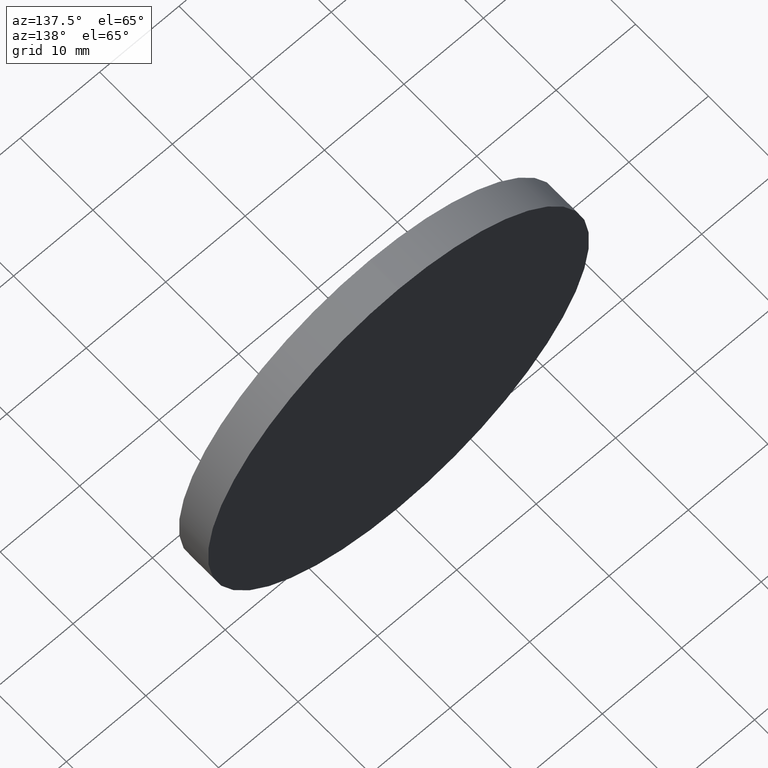
[diagram: clean part render]
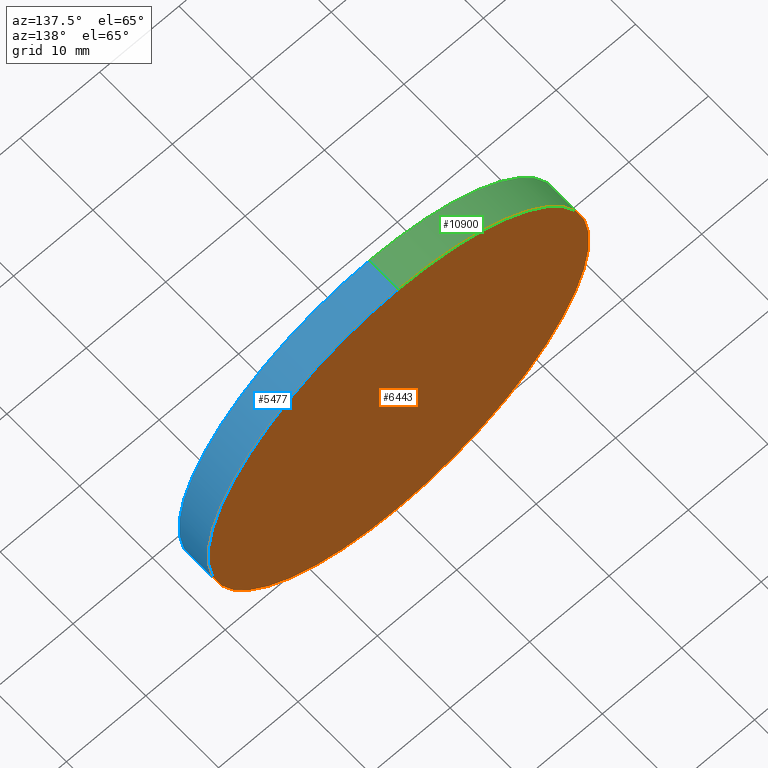
[diagram: same view with three faces highlighted in distinct colors, each labeled with its STEP entity id]
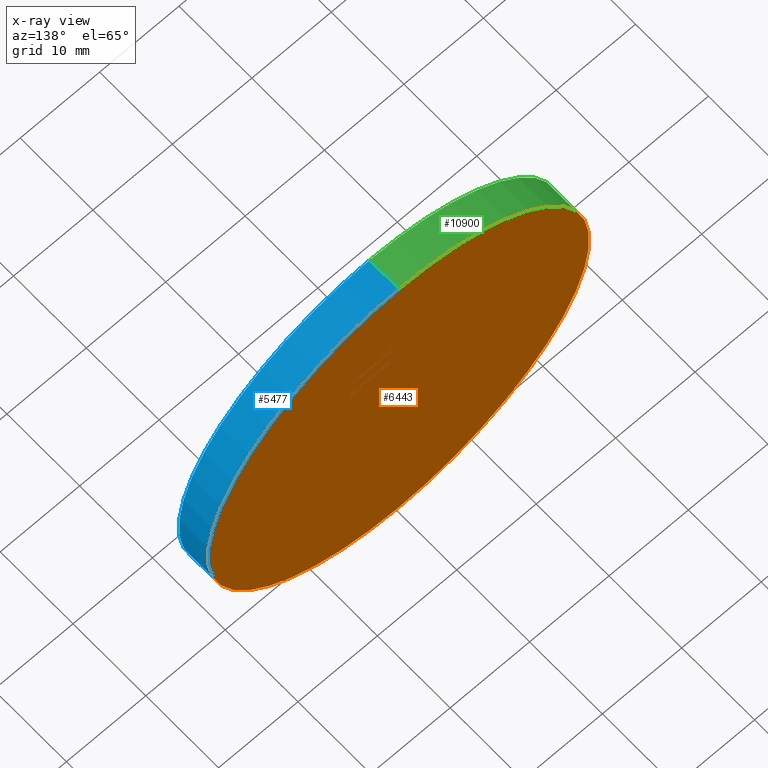
[diagram: x-ray of the same camera — body ghosted, the three highlighted faces saturated]
A machine part, auxiliary view with three faces highlighted in distinct colors.
The next image is the same camera in x-ray (body ghosted, the three faces saturated) — at least one of them is partly hidden behind the body in this view.
Their STEP definitions:

[orange] entity #6443 — the highlighted planar face has unit normal (0, 1, 0).
#729 = DIRECTION ( 'NONE',  ( 0.000000000000000000, 1.000000000000000000, 0.000000000000000000 ) ) ;
#2249 = VERTEX_POINT ( 'NONE', #11941 ) ;
#2889 = AXIS2_PLACEMENT_3D ( 'NONE', #12358, #11197, #7080 ) ;
#2966 = ORIENTED_EDGE ( 'NONE', *, *, #12087, .T. ) ;
#3502 = DIRECTION ( 'NONE',  ( 0.000000000000000000, 1.000000000000000000, 0.000000000000000000 ) ) ;
#3632 = DIRECTION ( 'NONE',  ( 0.000000000000000000, 0.000000000000000000, 1.000000000000000000 ) ) ;
#3902 = PLANE ( 'NONE',  #7726 ) ;
#4690 = CARTESIAN_POINT ( 'NONE',  ( 0.000000000000000000, 2.000000000000000000, 0.000000000000000000 ) ) ;
#6187 = ORIENTED_EDGE ( 'NONE', *, *, #8528, .T. ) ;
#6443 = ADVANCED_FACE ( 'NONE', ( #8661 ), #3902, .T. ) ;
#6856 = CIRCLE ( 'NONE', #9079, 24.00000000000000355 ) ;
#7080 = DIRECTION ( 'NONE',  ( 0.000000000000000000, 0.000000000000000000, 1.000000000000000000 ) ) ;
#7726 = AXIS2_PLACEMENT_3D ( 'NONE', #8012, #729, #10183 ) ;
#8012 = CARTESIAN_POINT ( 'NONE',  ( 0.000000000000000000, 2.000000000000000000, 0.000000000000000000 ) ) ;
#8528 = EDGE_CURVE ( 'NONE', #10578, #2249, #6856, .T. ) ;
#8661 = FACE_OUTER_BOUND ( 'NONE', #12594, .T. ) ;
#8835 = CARTESIAN_POINT ( 'NONE',  ( 0.000000000000000000, 2.000000000000000000, -24.00000000000000355 ) ) ;
#9079 = AXIS2_PLACEMENT_3D ( 'NONE', #4690, #3502, #3632 ) ;
#10183 = DIRECTION ( 'NONE',  ( 0.000000000000000000, -0.000000000000000000, 1.000000000000000000 ) ) ;
#10578 = VERTEX_POINT ( 'NONE', #8835 ) ;
#11197 = DIRECTION ( 'NONE',  ( 0.000000000000000000, 1.000000000000000000, 0.000000000000000000 ) ) ;
#11941 = CARTESIAN_POINT ( 'NONE',  ( 2.939152317953648289E-15, 2.000000000000000000, 24.00000000000000355 ) ) ;
#12087 = EDGE_CURVE ( 'NONE', #2249, #10578, #13422, .T. ) ;
#12358 = CARTESIAN_POINT ( 'NONE',  ( 0.000000000000000000, 2.000000000000000000, 0.000000000000000000 ) ) ;
#12594 = EDGE_LOOP ( 'NONE', ( #6187, #2966 ) ) ;
#13422 = CIRCLE ( 'NONE', #2889, 24.00000000000000355 ) ;

[blue] entity #5477 — the highlighted cylindrical surface (partial cylindrical patch) has radius 24 mm, axis along (-0, -1, -0).
#163 = VERTEX_POINT ( 'NONE', #12439 ) ;
#194 = ORIENTED_EDGE ( 'NONE', *, *, #6591, .T. ) ;
#906 = FACE_OUTER_BOUND ( 'NONE', #11279, .T. ) ;
#982 = ORIENTED_EDGE ( 'NONE', *, *, #9494, .F. ) ;
#2249 = VERTEX_POINT ( 'NONE', #11941 ) ;
#2329 = VERTEX_POINT ( 'NONE', #9196 ) ;
#2889 = AXIS2_PLACEMENT_3D ( 'NONE', #12358, #11197, #7080 ) ;
#2891 = DIRECTION ( 'NONE',  ( -0.000000000000000000, -1.000000000000000000, -0.000000000000000000 ) ) ;
#4031 = LINE ( 'NONE', #9513, #7477 ) ;
#4225 = DIRECTION ( 'NONE',  ( -0.000000000000000000, -1.000000000000000000, -0.000000000000000000 ) ) ;
#5477 = ADVANCED_FACE ( 'NONE', ( #906 ), #8508, .T. ) ;
#6092 = ORIENTED_EDGE ( 'NONE', *, *, #12087, .F. ) ;
#6285 = CARTESIAN_POINT ( 'NONE',  ( 0.000000000000000000, -2.000000000000000000, 0.000000000000000000 ) ) ;
#6591 = EDGE_CURVE ( 'NONE', #2329, #163, #9805, .T. ) ;
#7080 = DIRECTION ( 'NONE',  ( 0.000000000000000000, 0.000000000000000000, 1.000000000000000000 ) ) ;
#7191 = VECTOR ( 'NONE', #2891, 1000.000000000000000 ) ;
#7281 = AXIS2_PLACEMENT_3D ( 'NONE', #6285, #12961, #7668 ) ;
#7477 = VECTOR ( 'NONE', #4225, 1000.000000000000000 ) ;
#7668 = DIRECTION ( 'NONE',  ( 0.000000000000000000, 0.000000000000000000, 1.000000000000000000 ) ) ;
#8324 = DIRECTION ( 'NONE',  ( 0.000000000000000000, 0.000000000000000000, -1.000000000000000000 ) ) ;
#8508 = CYLINDRICAL_SURFACE ( 'NONE', #9437, 24.00000000000000355 ) ;
#8835 = CARTESIAN_POINT ( 'NONE',  ( 0.000000000000000000, 2.000000000000000000, -24.00000000000000355 ) ) ;
#9165 = ORIENTED_EDGE ( 'NONE', *, *, #12276, .T. ) ;
#9196 = CARTESIAN_POINT ( 'NONE',  ( 2.939152317953648289E-15, -2.000000000000000000, 24.00000000000000355 ) ) ;
#9347 = DIRECTION ( 'NONE',  ( -0.000000000000000000, -1.000000000000000000, -0.000000000000000000 ) ) ;
#9437 = AXIS2_PLACEMENT_3D ( 'NONE', #13413, #9347, #8324 ) ;
#9494 = EDGE_CURVE ( 'NONE', #10578, #163, #13114, .T. ) ;
#9513 = CARTESIAN_POINT ( 'NONE',  ( 2.939152317953648289E-15, 2.000000000000000000, 24.00000000000000355 ) ) ;
#9805 = CIRCLE ( 'NONE', #7281, 24.00000000000000355 ) ;
#10578 = VERTEX_POINT ( 'NONE', #8835 ) ;
#11197 = DIRECTION ( 'NONE',  ( 0.000000000000000000, 1.000000000000000000, 0.000000000000000000 ) ) ;
#11279 = EDGE_LOOP ( 'NONE', ( #6092, #9165, #194, #982 ) ) ;
#11424 = CARTESIAN_POINT ( 'NONE',  ( 0.000000000000000000, 2.000000000000000000, -24.00000000000000355 ) ) ;
#11941 = CARTESIAN_POINT ( 'NONE',  ( 2.939152317953648289E-15, 2.000000000000000000, 24.00000000000000355 ) ) ;
#12087 = EDGE_CURVE ( 'NONE', #2249, #10578, #13422, .T. ) ;
#12276 = EDGE_CURVE ( 'NONE', #2249, #2329, #4031, .T. ) ;
#12358 = CARTESIAN_POINT ( 'NONE',  ( 0.000000000000000000, 2.000000000000000000, 0.000000000000000000 ) ) ;
#12439 = CARTESIAN_POINT ( 'NONE',  ( 0.000000000000000000, -2.000000000000000000, -24.00000000000000355 ) ) ;
#12961 = DIRECTION ( 'NONE',  ( 0.000000000000000000, 1.000000000000000000, 0.000000000000000000 ) ) ;
#13114 = LINE ( 'NONE', #11424, #7191 ) ;
#13413 = CARTESIAN_POINT ( 'NONE',  ( 0.000000000000000000, 2.000000000000000000, 0.000000000000000000 ) ) ;
#13422 = CIRCLE ( 'NONE', #2889, 24.00000000000000355 ) ;

[green] entity #10900 — the highlighted cylindrical surface (partial cylindrical patch) has radius 24 mm, axis along (-0, -1, -0).
#163 = VERTEX_POINT ( 'NONE', #12439 ) ;
#559 = CARTESIAN_POINT ( 'NONE',  ( 0.000000000000000000, 2.000000000000000000, 0.000000000000000000 ) ) ;
#944 = CARTESIAN_POINT ( 'NONE',  ( 0.000000000000000000, -2.000000000000000000, 0.000000000000000000 ) ) ;
#1058 = ORIENTED_EDGE ( 'NONE', *, *, #9494, .T. ) ;
#1403 = FACE_OUTER_BOUND ( 'NONE', #2663, .T. ) ;
#1425 = DIRECTION ( 'NONE',  ( -0.000000000000000000, -1.000000000000000000, -0.000000000000000000 ) ) ;
#1449 = AXIS2_PLACEMENT_3D ( 'NONE', #944, #8236, #6086 ) ;
#1464 = AXIS2_PLACEMENT_3D ( 'NONE', #559, #1425, #12121 ) ;
#1512 = ORIENTED_EDGE ( 'NONE', *, *, #8528, .F. ) ;
#2249 = VERTEX_POINT ( 'NONE', #11941 ) ;
#2329 = VERTEX_POINT ( 'NONE', #9196 ) ;
#2663 = EDGE_LOOP ( 'NONE', ( #11604, #1512, #1058, #5623 ) ) ;
#2891 = DIRECTION ( 'NONE',  ( -0.000000000000000000, -1.000000000000000000, -0.000000000000000000 ) ) ;
#3502 = DIRECTION ( 'NONE',  ( 0.000000000000000000, 1.000000000000000000, 0.000000000000000000 ) ) ;
#3632 = DIRECTION ( 'NONE',  ( 0.000000000000000000, 0.000000000000000000, 1.000000000000000000 ) ) ;
#3688 = CIRCLE ( 'NONE', #1449, 24.00000000000000355 ) ;
#4031 = LINE ( 'NONE', #9513, #7477 ) ;
#4225 = DIRECTION ( 'NONE',  ( -0.000000000000000000, -1.000000000000000000, -0.000000000000000000 ) ) ;
#4690 = CARTESIAN_POINT ( 'NONE',  ( 0.000000000000000000, 2.000000000000000000, 0.000000000000000000 ) ) ;
#5370 = EDGE_CURVE ( 'NONE', #163, #2329, #3688, .T. ) ;
#5623 = ORIENTED_EDGE ( 'NONE', *, *, #5370, .T. ) ;
#6086 = DIRECTION ( 'NONE',  ( 0.000000000000000000, 0.000000000000000000, 1.000000000000000000 ) ) ;
#6856 = CIRCLE ( 'NONE', #9079, 24.00000000000000355 ) ;
#7191 = VECTOR ( 'NONE', #2891, 1000.000000000000000 ) ;
#7477 = VECTOR ( 'NONE', #4225, 1000.000000000000000 ) ;
#8236 = DIRECTION ( 'NONE',  ( 0.000000000000000000, 1.000000000000000000, 0.000000000000000000 ) ) ;
#8528 = EDGE_CURVE ( 'NONE', #10578, #2249, #6856, .T. ) ;
#8835 = CARTESIAN_POINT ( 'NONE',  ( 0.000000000000000000, 2.000000000000000000, -24.00000000000000355 ) ) ;
#9079 = AXIS2_PLACEMENT_3D ( 'NONE', #4690, #3502, #3632 ) ;
#9196 = CARTESIAN_POINT ( 'NONE',  ( 2.939152317953648289E-15, -2.000000000000000000, 24.00000000000000355 ) ) ;
#9357 = CYLINDRICAL_SURFACE ( 'NONE', #1464, 24.00000000000000355 ) ;
#9494 = EDGE_CURVE ( 'NONE', #10578, #163, #13114, .T. ) ;
#9513 = CARTESIAN_POINT ( 'NONE',  ( 2.939152317953648289E-15, 2.000000000000000000, 24.00000000000000355 ) ) ;
#10578 = VERTEX_POINT ( 'NONE', #8835 ) ;
#10900 = ADVANCED_FACE ( 'NONE', ( #1403 ), #9357, .T. ) ;
#11424 = CARTESIAN_POINT ( 'NONE',  ( 0.000000000000000000, 2.000000000000000000, -24.00000000000000355 ) ) ;
#11604 = ORIENTED_EDGE ( 'NONE', *, *, #12276, .F. ) ;
#11941 = CARTESIAN_POINT ( 'NONE',  ( 2.939152317953648289E-15, 2.000000000000000000, 24.00000000000000355 ) ) ;
#12121 = DIRECTION ( 'NONE',  ( 0.000000000000000000, 0.000000000000000000, -1.000000000000000000 ) ) ;
#12276 = EDGE_CURVE ( 'NONE', #2249, #2329, #4031, .T. ) ;
#12439 = CARTESIAN_POINT ( 'NONE',  ( 0.000000000000000000, -2.000000000000000000, -24.00000000000000355 ) ) ;
#13114 = LINE ( 'NONE', #11424, #7191 ) ;